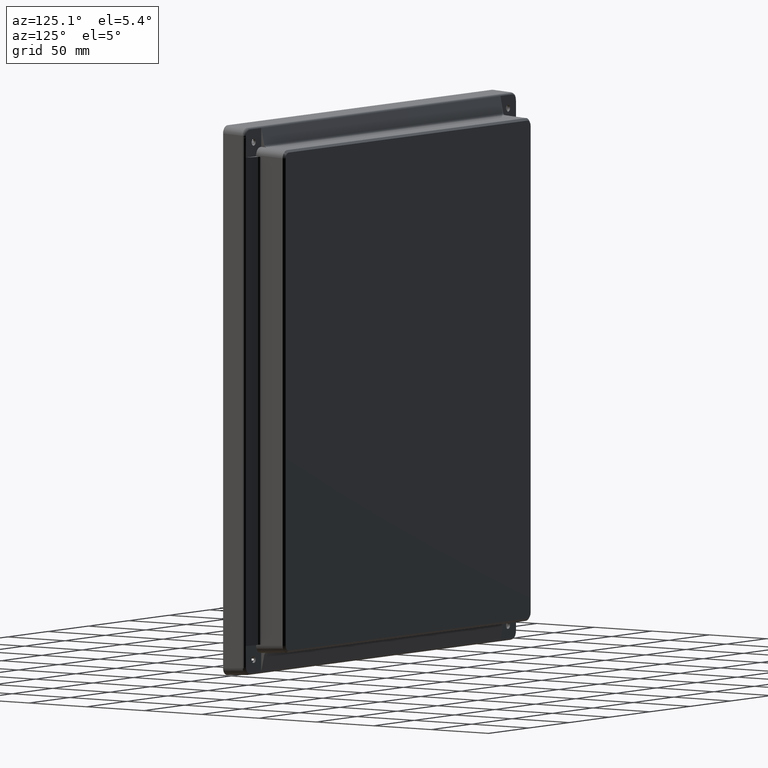
[diagram: clean part render]
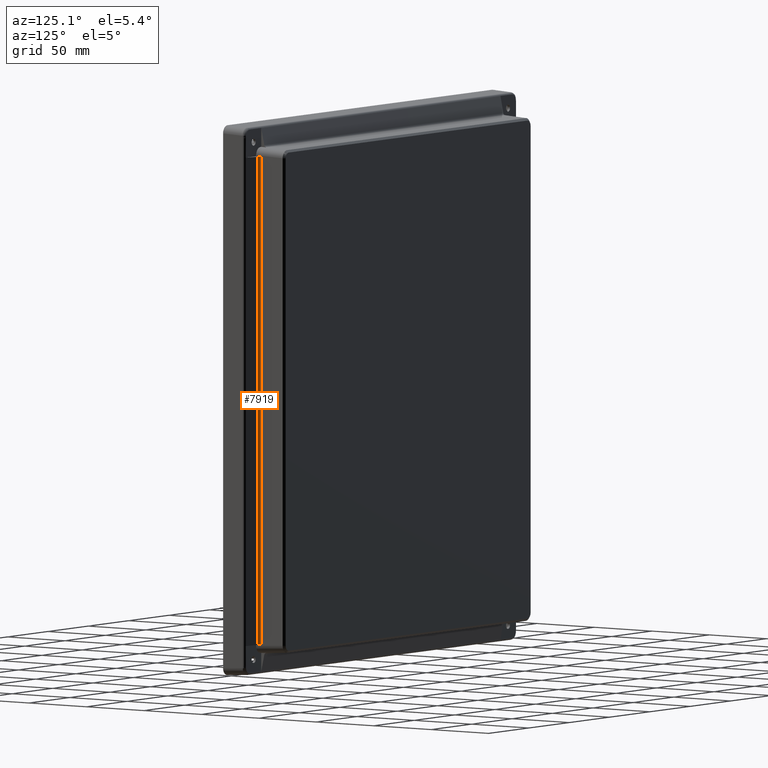
[diagram: same view with one face highlighted and labeled with its STEP entity id]
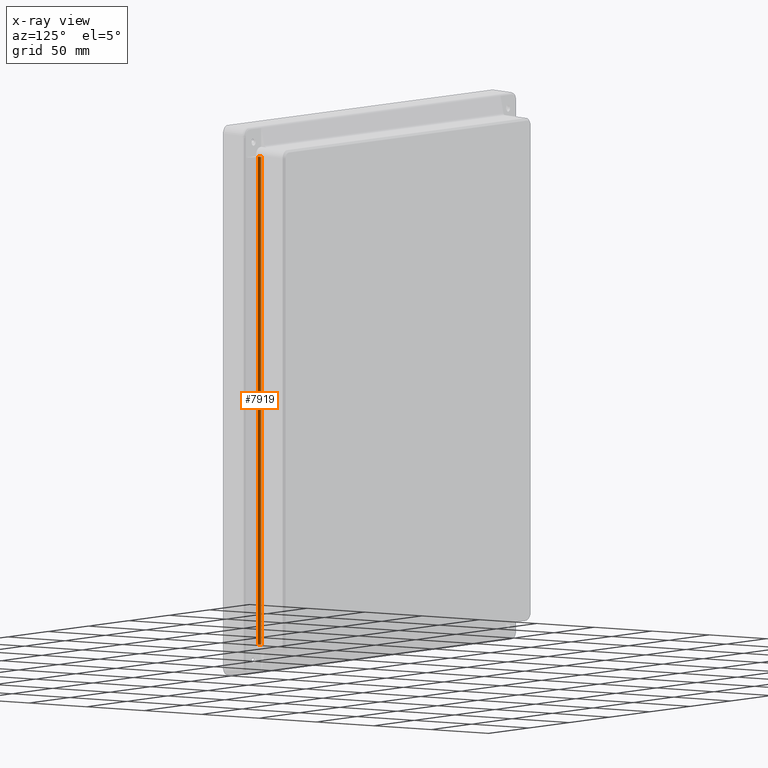
[diagram: x-ray of the same camera — body ghosted, the highlighted face saturated]
A machine part, auxiliary view. The second image highlights one B-rep face of the part: STEP entity #7919.
The next image is the same camera in x-ray: the body ghosted, the highlighted face saturated — about 0% of this face is hidden behind the body in this view.
In plain terms, the highlighted cylindrical surface (edge-blend (fillet) strip) has radius 2 mm, axis along (-0, 0, -1).
Its self-contained STEP definition (entity closure, byte-faithful):
#227 = CARTESIAN_POINT ( 'NONE',  ( 155.8193288229011600, 12.69024197221564000, -174.5575553951949000 ) ) ;
#228 = CARTESIAN_POINT ( 'NONE',  ( 154.8985309053420000, 12.88596361156492300, -174.5472980587190400 ) ) ;
#229 = CARTESIAN_POINT ( 'NONE',  ( 154.2871605865714500, 13.60178628403152200, -174.5097833820945800 ) ) ;
#230 = CARTESIAN_POINT ( 'NONE',  ( 154.2378931350274900, 14.54186526119737800, -174.4605159305507100 ) ) ;
#231 =( BOUNDED_CURVE ( )  B_SPLINE_CURVE ( 3, ( #230, #229, #228, #227 ),
 .UNSPECIFIED., .F., .T. ) 
 B_SPLINE_CURVE_WITH_KNOTS ( ( 4, 4 ),
 ( 4.764748857944517200, 6.073745796940273500 ),
 .UNSPECIFIED. ) 
 CURVE ( )  GEOMETRIC_REPRESENTATION_ITEM ( )  RATIONAL_B_SPLINE_CURVE ( ( 1.000000000000000000, 0.8622355601941548200, 0.8622355601941548200, 1.000000000000000000 ) ) 
 REPRESENTATION_ITEM ( '' )  );
#427 = DIRECTION ( 'NONE',  ( -1.000000000000000000, 0.0000000000000000000, 0.0000000000000000000 ) ) ;
#428 = DIRECTION ( 'NONE',  ( -1.578409515821900400E-016, 9.383473256558876700E-017, -1.000000000000000000 ) ) ;
#429 = CARTESIAN_POINT ( 'NONE',  ( 156.2351522045367200, 14.64653717368321800, 195.7259222071696200 ) ) ;
#430 = AXIS2_PLACEMENT_3D ( 'NONE', #429, #428, #427 ) ;
#432 = CYLINDRICAL_SURFACE ( 'NONE', #430, 2.000000000000001800 ) ;
#437 = FACE_OUTER_BOUND ( 'NONE', #7215, .T. ) ;
#4549 = CARTESIAN_POINT ( 'NONE',  ( 154.2378931350275500, 14.54186526119733200, 174.4605159305508300 ) ) ;
#6991 = EDGE_CURVE ( 'NONE', #8913, #6992, #9891, .T. ) ;
#6992 = VERTEX_POINT ( 'NONE', #9887 ) ;
#7012 = VERTEX_POINT ( 'NONE', #9914 ) ;
#7014 = EDGE_CURVE ( 'NONE', #7012, #7015, #9913, .T. ) ;
#7015 = VERTEX_POINT ( 'NONE', #9973 ) ;
#7212 = ORIENTED_EDGE ( 'NONE', *, *, #7661, .F. ) ;
#7214 = ORIENTED_EDGE ( 'NONE', *, *, #7764, .F. ) ;
#7215 = EDGE_LOOP ( 'NONE', ( #7214, #7216, #7212, #7901 ) ) ;
#7216 = ORIENTED_EDGE ( 'NONE', *, *, #6991, .F. ) ;
#7222 = CARTESIAN_POINT ( 'NONE',  ( 154.2871605865715600, 13.60178628403148200, 174.5097833820947500 ) ) ;
#7223 = CARTESIAN_POINT ( 'NONE',  ( 154.2378931350275500, 14.54186526119733200, 174.4605159305508300 ) ) ;
#7661 = EDGE_CURVE ( 'NONE', #7015, #8913, #10994, .T. ) ;
#7764 = EDGE_CURVE ( 'NONE', #6992, #7012, #231, .T. ) ;
#7901 = ORIENTED_EDGE ( 'NONE', *, *, #7014, .F. ) ;
#7919 = ADVANCED_FACE ( 'NONE', ( #437 ), #432, .F. ) ;
#8913 = VERTEX_POINT ( 'NONE', #4549 ) ;
#9887 = CARTESIAN_POINT ( 'NONE',  ( 154.2378931350274900, 14.54186526119737800, -174.4605159305507100 ) ) ;
#9888 = DIRECTION ( 'NONE',  ( -1.578409515821900400E-016, 9.383473256558875400E-017, -1.000000000000000000 ) ) ;
#9889 = VECTOR ( 'NONE', #9888, 1000.000000000000000 ) ;
#9890 = CARTESIAN_POINT ( 'NONE',  ( 154.2378931350274900, 14.54186526119736600, -174.5408335138845100 ) ) ;
#9891 = LINE ( 'NONE', #9890, #9889 ) ;
#9913 = LINE ( 'NONE', #9976, #9975 ) ;
#9914 = CARTESIAN_POINT ( 'NONE',  ( 155.8193288229011600, 12.69024197221564000, -174.5575553951949000 ) ) ;
#9973 = CARTESIAN_POINT ( 'NONE',  ( 155.8193288229012100, 12.69024197221560300, 174.5575553951951000 ) ) ;
#9974 = DIRECTION ( 'NONE',  ( 1.578409515821900400E-016, -9.383473256558876700E-017, 1.000000000000000000 ) ) ;
#9975 = VECTOR ( 'NONE', #9974, 1000.000000000000000 ) ;
#9976 = CARTESIAN_POINT ( 'NONE',  ( 155.8193288229012100, 12.69024197221560600, 174.5408335138846200 ) ) ;
#10582 = CARTESIAN_POINT ( 'NONE',  ( 154.8985309053420600, 12.88596361156489000, 174.5472980587191800 ) ) ;
#10992 = CARTESIAN_POINT ( 'NONE',  ( 155.8193288229012100, 12.69024197221560300, 174.5575553951951000 ) ) ;
#10994 =( BOUNDED_CURVE ( )  B_SPLINE_CURVE ( 3, ( #10992, #10582, #7222, #7223 ),
 .UNSPECIFIED., .F., .T. ) 
 B_SPLINE_CURVE_WITH_KNOTS ( ( 4, 4 ),
 ( 3.351032163829111200, 4.660029102824862200 ),
 .UNSPECIFIED. ) 
 CURVE ( )  GEOMETRIC_REPRESENTATION_ITEM ( )  RATIONAL_B_SPLINE_CURVE ( ( 1.000000000000000000, 0.8622355601941560400, 0.8622355601941560400, 1.000000000000000000 ) ) 
 REPRESENTATION_ITEM ( '' )  );